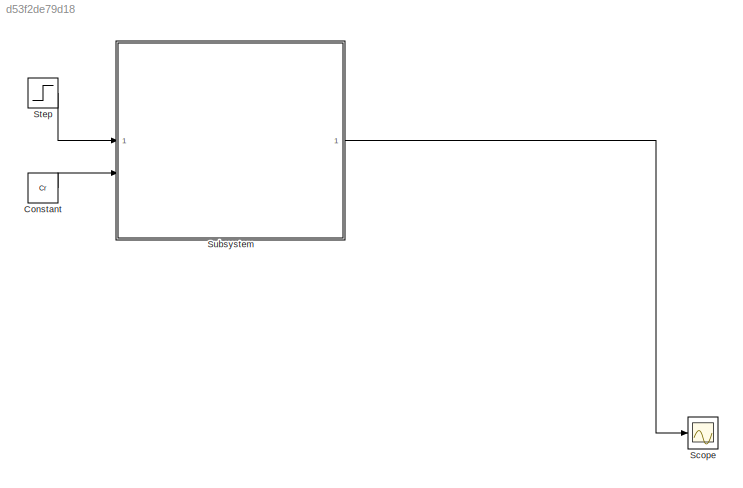
MODEL slx_d53f2de79d18
KIND model
CONFIG AbsTol = auto
CONFIG EnableMultiTasking = off
CONFIG FixedStep = auto
CONFIG MaxStep = auto
CONFIG MinStep = auto
CONFIG RelTol = 1e-3
CONFIG SampleTimeConstraint = Unconstrained
CONFIG SolverName = ode15s
CONFIG StartTime = 0.0
CONFIG StopTime = 0.2
BLOCK [Constant] Constant
  Value = Cr
BLOCK [Scope] Scope
  Floating = off
  NumInputPorts = 1
  ScopeSpecificationString = Simulink.scopes.TimeScopeBlockCfg('CurrentConfiguration', extmgr.ConfigurationSet(extmgr.Configuration('Core','General UI',true),extmgr.Configuration('Core','Source UI',true),extmgr.Configuration('Sources','WiredSimulink',true),extmgr.Configuration('Visuals','Time Domain',true,'SerializedDisplays',{struct('MinYLimReal','-9.84063','MaxYLimReal','88.56564','YLabelReal','','MinYLimMag','0.00000','Max...<+1502ch>
BLOCK [Step] Step
  After = U
  SampleTime = 0
  Time = 0
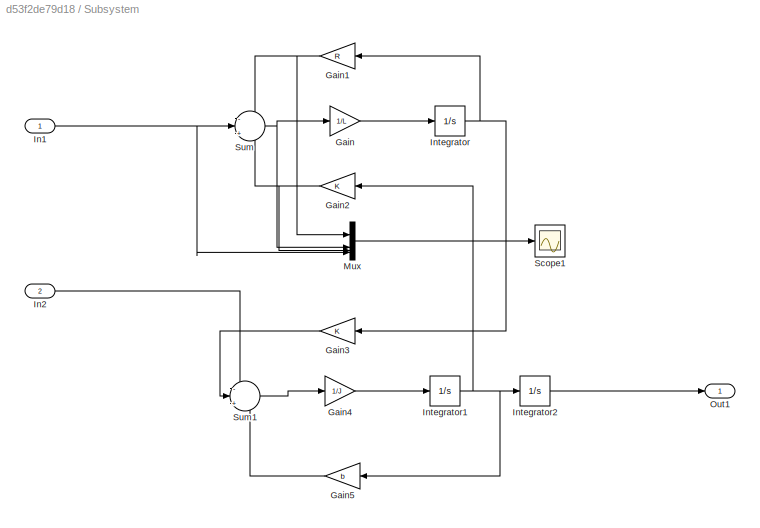
BLOCK [SubSystem] Subsystem
BLOCK [Gain] Subsystem/Gain
  Gain = 1/L
BLOCK [Gain] Subsystem/Gain1
  Gain = R
  NameLocation = top
BLOCK [Gain] Subsystem/Gain2
  Gain = K
  NameLocation = top
BLOCK [Gain] Subsystem/Gain3
  Gain = K
  NameLocation = top
BLOCK [Gain] Subsystem/Gain4
  Gain = 1/J
BLOCK [Gain] Subsystem/Gain5
  Gain = b
  NameLocation = top
BLOCK [Inport] Subsystem/In1
  IconDisplay = Signal name
BLOCK [Inport] Subsystem/In2
  Port = 2
BLOCK [Integrator] Subsystem/Integrator
BLOCK [Integrator] Subsystem/Integrator1
BLOCK [Integrator] Subsystem/Integrator2
BLOCK [Mux] Subsystem/Mux
  DisplayOption = bar
BLOCK [Outport] Subsystem/Out1
BLOCK [Scope] Subsystem/Scope1
  Floating = off
  NumInputPorts = 1
  ScopeSpecificationString = Simulink.scopes.TimeScopeBlockCfg('CurrentConfiguration', extmgr.ConfigurationSet(extmgr.Configuration('Core','General UI',true),extmgr.Configuration('Core','Source UI',true),extmgr.Configuration('Sources','WiredSimulink',true,'DataLoggingVariableName','ScopeData1'),extmgr.Configuration('Visuals','Time Domain',true,'SerializedDisplays',{struct('MinYLimReal','-1.50121','MaxYLimReal','13.50013','YLa...<+1537ch>
BLOCK [Sum] Subsystem/Sum
  Inputs = -|+|-
BLOCK [Sum] Subsystem/Sum1
  Inputs = -|+|-
LINE Constant:1 -> Subsystem:2
LINE Step:1 -> Subsystem:1
NET Subsystem/Gain1:1 -> Subsystem/Mux:1, Subsystem/Sum:1
NET Subsystem/Gain2:1 -> Subsystem/Mux:3, Subsystem/Sum:3
LINE Subsystem/Gain3:1 -> Subsystem/Sum1:2
LINE Subsystem/Gain4:1 -> Subsystem/Integrator1:1
LINE Subsystem/Gain5:1 -> Subsystem/Sum1:3
LINE Subsystem/Gain:1 -> Subsystem/Integrator:1
NET Subsystem/In1:1 -> Subsystem/Mux:4, Subsystem/Sum:2
LINE Subsystem/In2:1 -> Subsystem/Sum1:1
NET Subsystem/Integrator1:1 -> Subsystem/Gain2:1, Subsystem/Gain5:1, Subsystem/Integrator2:1
LINE Subsystem/Integrator2:1 -> Subsystem/Out1:1
NET Subsystem/Integrator:1 -> Subsystem/Gain1:1, Subsystem/Gain3:1
LINE Subsystem/Mux:1 -> Subsystem/Scope1:1
LINE Subsystem/Sum1:1 -> Subsystem/Gain4:1
NET Subsystem/Sum:1 -> Subsystem/Gain:1, Subsystem/Mux:2
LINE Subsystem:1 -> Scope:1
note: NET lines group one-source signal fan-out (src -> all destinations, sorted); 1:1 wires keep LINE
